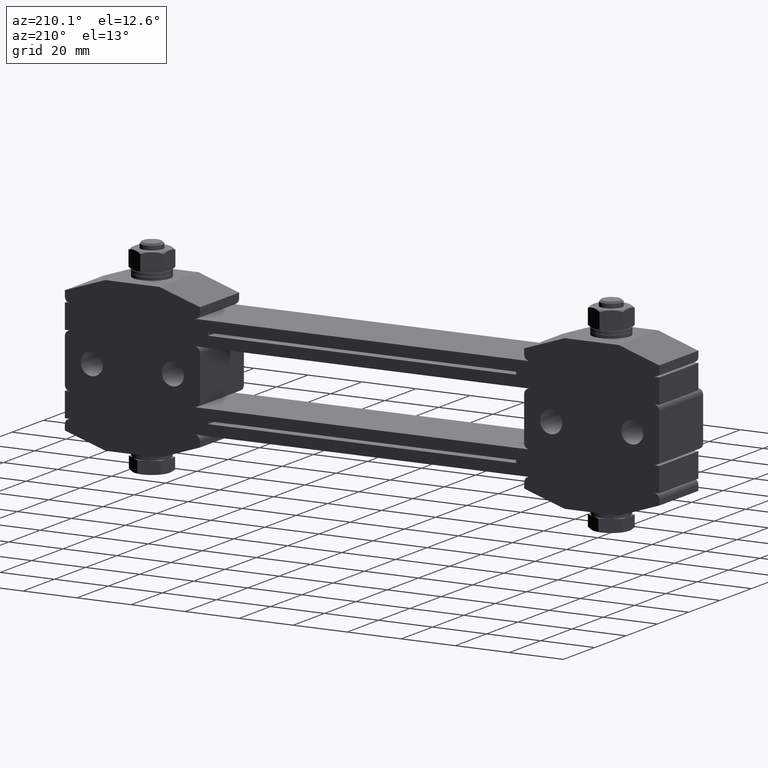
[diagram: clean part render]
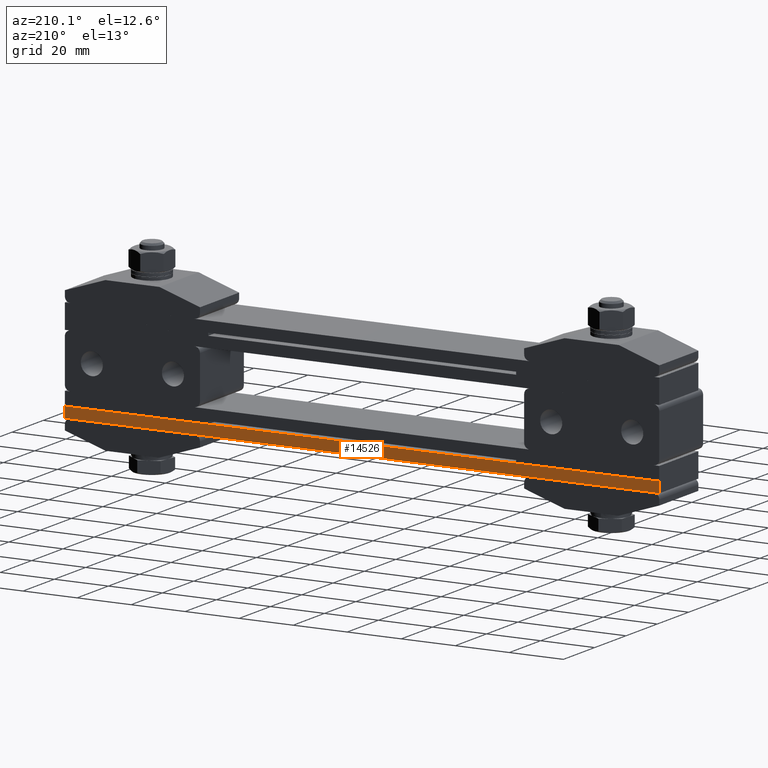
[diagram: same view with one face highlighted and labeled with its STEP entity id]
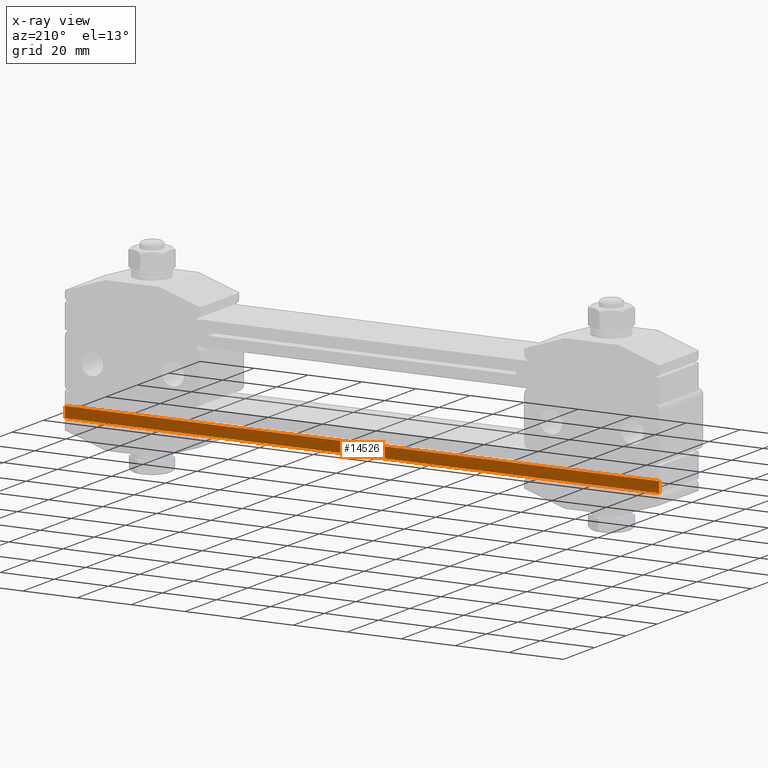
[diagram: x-ray of the same camera — body ghosted, the highlighted face saturated]
A machine part, auxiliary view. The second image highlights one B-rep face of the part: STEP entity #14526.
The next image is the same camera in x-ray: the body ghosted, the highlighted face saturated — about 0% of this face is hidden behind the body in this view.
In plain terms, the highlighted planar face has unit normal (-0, -1, 0).
Its self-contained STEP definition (entity closure, byte-faithful):
#977 = VECTOR ( 'NONE', #12693, 1000.000000000000000 ) ;
#1711 = LINE ( 'NONE', #19861, #13554 ) ;
#1845 = VERTEX_POINT ( 'NONE', #3458 ) ;
#1956 = FACE_OUTER_BOUND ( 'NONE', #18606, .T. ) ;
#2403 = DIRECTION ( 'NONE',  ( -5.519574696289839900E-017, -1.000000000000000000, 0.0000000000000000000 ) ) ;
#3173 = LINE ( 'NONE', #5921, #977 ) ;
#3458 = CARTESIAN_POINT ( 'NONE',  ( 110.0000000000000000, 12.50000000000000000, -1.000000000000000000 ) ) ;
#3564 = ORIENTED_EDGE ( 'NONE', *, *, #5465, .T. ) ;
#3671 = EDGE_CURVE ( 'NONE', #14749, #10625, #1711, .T. ) ;
#5225 = CARTESIAN_POINT ( 'NONE',  ( -110.0000000000000000, 12.50000000000000000, -1.000000000000000000 ) ) ;
#5313 = ORIENTED_EDGE ( 'NONE', *, *, #22488, .F. ) ;
#5465 = EDGE_CURVE ( 'NONE', #1845, #8608, #3173, .T. ) ;
#5710 = ORIENTED_EDGE ( 'NONE', *, *, #6276, .T. ) ;
#5715 = CARTESIAN_POINT ( 'NONE',  ( -110.0000000000000000, 12.50000000000000000, -5.000000000000000000 ) ) ;
#5921 = CARTESIAN_POINT ( 'NONE',  ( 110.0000000000000000, 12.50000000000000000, -1.000000000000000000 ) ) ;
#6276 = EDGE_CURVE ( 'NONE', #8608, #10625, #14993, .T. ) ;
#7795 = ORIENTED_EDGE ( 'NONE', *, *, #3671, .F. ) ;
#8608 = VERTEX_POINT ( 'NONE', #16288 ) ;
#9112 = CARTESIAN_POINT ( 'NONE',  ( -110.0000000000000000, 12.50000000000000000, -5.000000000000000000 ) ) ;
#9724 = LINE ( 'NONE', #16266, #19372 ) ;
#9937 = DIRECTION ( 'NONE',  ( 1.000000000000000000, -5.519574696289839900E-017, 0.0000000000000000000 ) ) ;
#10625 = VERTEX_POINT ( 'NONE', #9112 ) ;
#12693 = DIRECTION ( 'NONE',  ( 0.0000000000000000000, 0.0000000000000000000, -1.000000000000000000 ) ) ;
#12783 = VECTOR ( 'NONE', #19808, 1000.000000000000000 ) ;
#13554 = VECTOR ( 'NONE', #18103, 1000.000000000000000 ) ;
#14526 = ADVANCED_FACE ( 'NONE', ( #1956 ), #18136, .F. ) ;
#14749 = VERTEX_POINT ( 'NONE', #5225 ) ;
#14993 = LINE ( 'NONE', #5715, #12783 ) ;
#16189 = DIRECTION ( 'NONE',  ( -1.000000000000000000, 5.519574696289839900E-017, 0.0000000000000000000 ) ) ;
#16266 = CARTESIAN_POINT ( 'NONE',  ( -110.0000000000000000, 12.50000000000000000, -1.000000000000000000 ) ) ;
#16288 = CARTESIAN_POINT ( 'NONE',  ( 110.0000000000000000, 12.50000000000000000, -5.000000000000000000 ) ) ;
#16874 = AXIS2_PLACEMENT_3D ( 'NONE', #20509, #2403, #9937 ) ;
#18103 = DIRECTION ( 'NONE',  ( 0.0000000000000000000, 0.0000000000000000000, -1.000000000000000000 ) ) ;
#18136 = PLANE ( 'NONE',  #16874 ) ;
#18606 = EDGE_LOOP ( 'NONE', ( #5710, #7795, #5313, #3564 ) ) ;
#19372 = VECTOR ( 'NONE', #16189, 1000.000000000000000 ) ;
#19808 = DIRECTION ( 'NONE',  ( -1.000000000000000000, 5.519574696289839900E-017, 0.0000000000000000000 ) ) ;
#19861 = CARTESIAN_POINT ( 'NONE',  ( -110.0000000000000000, 12.50000000000000000, -1.000000000000000000 ) ) ;
#20509 = CARTESIAN_POINT ( 'NONE',  ( -110.0000000000000000, 12.50000000000000000, -1.000000000000000000 ) ) ;
#22488 = EDGE_CURVE ( 'NONE', #1845, #14749, #9724, .T. ) ;